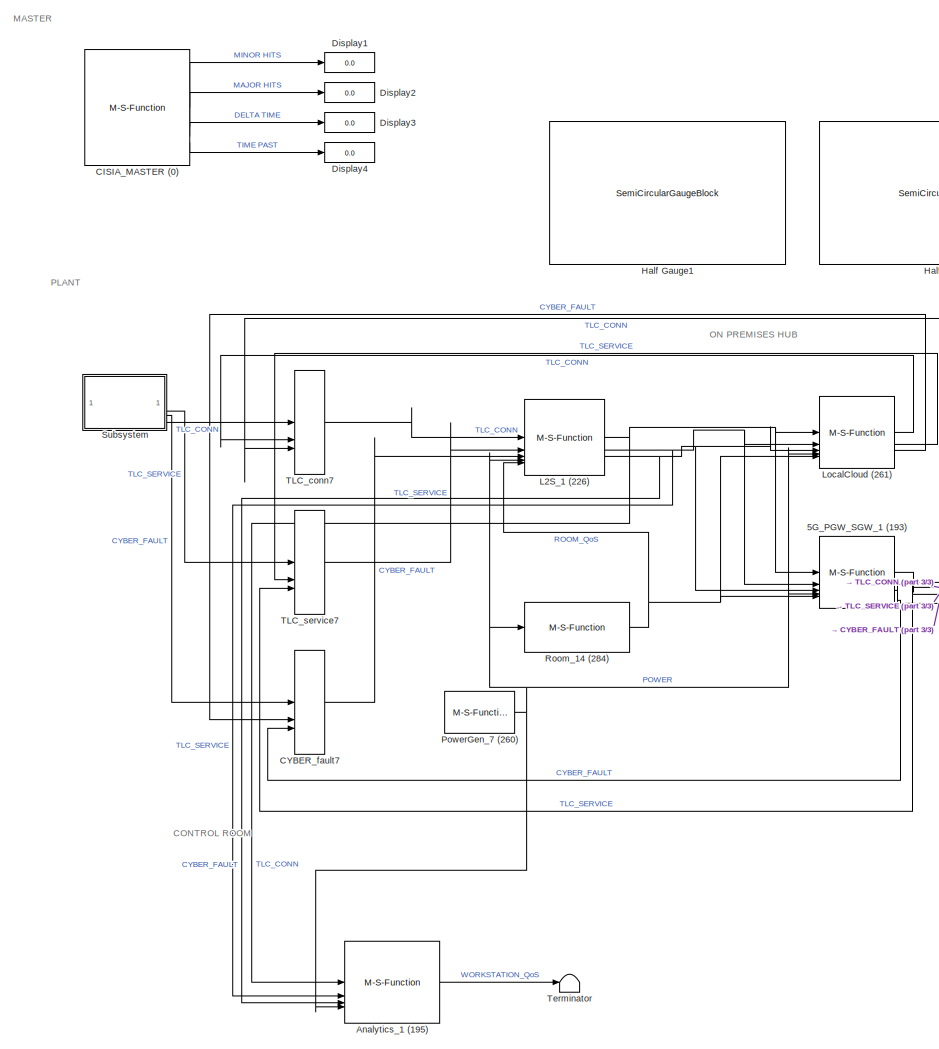
[diagram: root canvas - part 1/3, left side, full height]
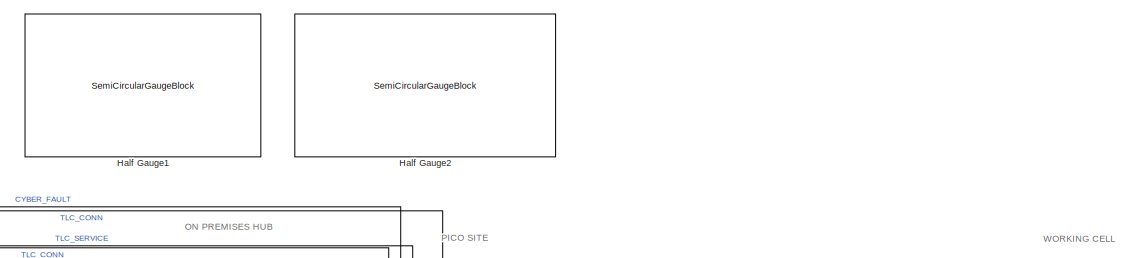
[diagram: root canvas - part 2/3, top center region]
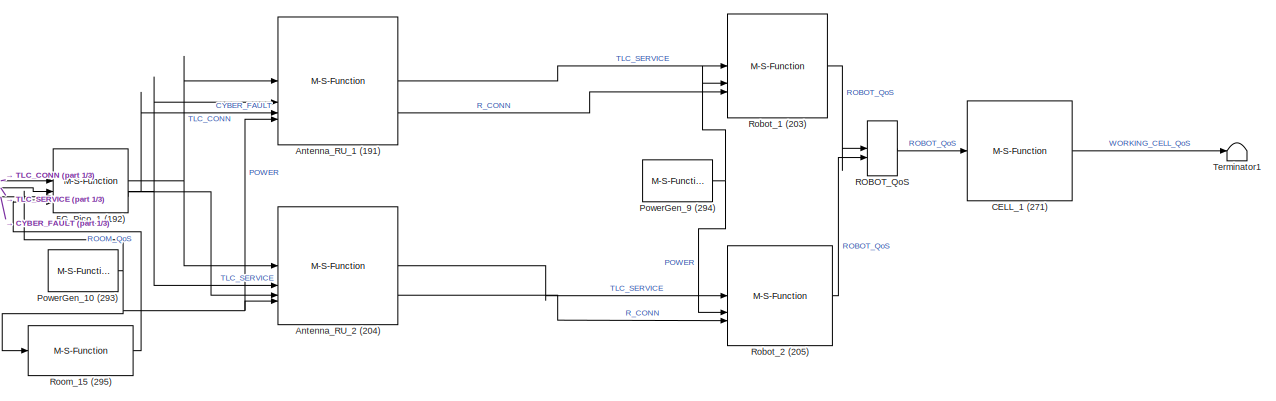
[diagram: root canvas - part 3/3, middle right region]
MODEL slx_37d6ca0d8c1a
KIND model
CONFIG AbsTol = auto
CONFIG EnableMultiTasking = off
CONFIG FixedStep = auto
CONFIG MaxStep = auto
CONFIG MinStep = auto
CONFIG RelTol = 1e-3
CONFIG SampleTimeConstraint = Unconstrained
CONFIG SolverName = VariableStepAuto
CONFIG StartTime = 0.0
CONFIG StopTime = 10.0
BLOCK [M-S-Function] 5G_PGW_SGW_1 (193)
  FunctionName = cisia_msfun
  Parameters = Parameter1, Parameter2, Parameter3, resources, Parameter10, codeupdate, step_received, step_computed, dynamic_computed, step_sended, id_entity, id_project, id_type, name_type, color
BLOCK [M-S-Function] 5G_Pico_1 (192)
  FunctionName = cisia_msfun
  Parameters = Parameter1, Parameter2, Parameter3, resources, Parameter10, codeupdate, step_received, step_computed, dynamic_computed, step_sended, id_entity, id_project, id_type, name_type, color
BLOCK [M-S-Function] Analytics_1 (195)
  FunctionName = cisia_msfun
  Parameters = Parameter1, Parameter2, Parameter3, resources, Parameter10, codeupdate, step_received, step_computed, dynamic_computed, step_sended, id_entity, id_project, id_type, name_type, color
BLOCK [M-S-Function] Antenna_RU_1 (191)
  FunctionName = cisia_msfun
  Parameters = Parameter1, Parameter2, Parameter3, resources, Parameter10, codeupdate, step_received, step_computed, dynamic_computed, step_sended, id_entity, id_project, id_type, name_type, color
BLOCK [M-S-Function] Antenna_RU_2 (204)
  FunctionName = cisia_msfun
  Parameters = Parameter1, Parameter2, Parameter3, resources, Parameter10, codeupdate, step_received, step_computed, dynamic_computed, step_sended, id_entity, id_project, id_type, name_type, color
BLOCK [M-S-Function] CELL_1 (271)
  FunctionName = cisia_msfun
  Parameters = Parameter1, Parameter2, Parameter3, resources, Parameter10, codeupdate, step_received, step_computed, dynamic_computed, step_sended, id_entity, id_project, id_type, name_type, color
BLOCK [M-S-Function] CISIA_MASTER (0)
  FunctionName = cisia_msfun
  Parameters = Parameter1, Parameter2, Parameter3, resources, Parameter4, Parameter5, Parameter6, Parameter7, Parameter8, Parameter9,Parameter11,Parameter12
BLOCK [MinMax] CYBER_fault7
  Function = max
  Inputs = 3
BLOCK [Display] Display1
  Decimation = 1
BLOCK [Display] Display2
  Decimation = 1
BLOCK [Display] Display3
  Decimation = 1
BLOCK [Display] Display4
  Decimation = 1
BLOCK [SemiCircularGaugeBlock] Half Gauge1
  ScaleMax = 1
BLOCK [SemiCircularGaugeBlock] Half Gauge2
  ScaleMax = 1
BLOCK [M-S-Function] L2S_1 (226)
  FunctionName = cisia_msfun
  Parameters = Parameter1, Parameter2, Parameter3, resources, Parameter10, codeupdate, step_received, step_computed, dynamic_computed, step_sended, id_entity, id_project, id_type, name_type, color
BLOCK [M-S-Function] LocalCloud (261)
  FunctionName = cisia_msfun
  Parameters = Parameter1, Parameter2, Parameter3, resources, Parameter10, codeupdate, step_received, step_computed, dynamic_computed, step_sended, id_entity, id_project, id_type, name_type, color
BLOCK [M-S-Function] PowerGen_10 (293)
  FunctionName = cisia_msfun
  Parameters = Parameter1, Parameter2, Parameter3, resources, Parameter10, codeupdate, step_received, step_computed, dynamic_computed, step_sended, id_entity, id_project, id_type, name_type, color
BLOCK [M-S-Function] PowerGen_7 (260)
  FunctionName = cisia_msfun
  Parameters = Parameter1, Parameter2, Parameter3, resources, Parameter10, codeupdate, step_received, step_computed, dynamic_computed, step_sended, id_entity, id_project, id_type, name_type, color
BLOCK [M-S-Function] PowerGen_9 (294)
  FunctionName = cisia_msfun
  Parameters = Parameter1, Parameter2, Parameter3, resources, Parameter10, codeupdate, step_received, step_computed, dynamic_computed, step_sended, id_entity, id_project, id_type, name_type, color
BLOCK [MinMax] ROBOT_QoS
  Inputs = 2
BLOCK [M-S-Function] Robot_1 (203)
  FunctionName = cisia_msfun
  Parameters = Parameter1, Parameter2, Parameter3, resources, Parameter10, codeupdate, step_received, step_computed, dynamic_computed, step_sended, id_entity, id_project, id_type, name_type, color
BLOCK [M-S-Function] Robot_2 (205)
  FunctionName = cisia_msfun
  Parameters = Parameter1, Parameter2, Parameter3, resources, Parameter10, codeupdate, step_received, step_computed, dynamic_computed, step_sended, id_entity, id_project, id_type, name_type, color
BLOCK [M-S-Function] Room_14 (284)
  FunctionName = cisia_msfun
  Parameters = Parameter1, Parameter2, Parameter3, resources, Parameter10, codeupdate, step_received, step_computed, dynamic_computed, step_sended, id_entity, id_project, id_type, name_type, color
BLOCK [M-S-Function] Room_15 (295)
  FunctionName = cisia_msfun
  Parameters = Parameter1, Parameter2, Parameter3, resources, Parameter10, codeupdate, step_received, step_computed, dynamic_computed, step_sended, id_entity, id_project, id_type, name_type, color
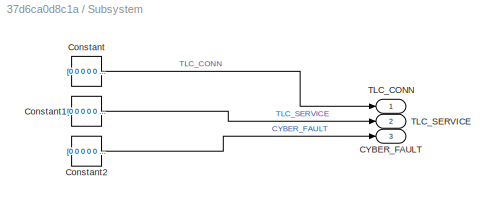
BLOCK [SubSystem] Subsystem
BLOCK [Outport] Subsystem/CYBER_FAULT
  Port = 3
BLOCK [Constant] Subsystem/Constant
  Value = [0 0 0 0 0 0 0 0 0 0 0 0 0 0 0 0 0 0 0 0]
BLOCK [Constant] Subsystem/Constant1
  Value = [0 0 0 0 0 0 0 0 0 0 0 0 0 0 0 0 0 0 0 0]
BLOCK [Constant] Subsystem/Constant2
  Value = [0 0 0 0 0 0 0 0 0 0]
BLOCK [Outport] Subsystem/TLC_CONN
BLOCK [Outport] Subsystem/TLC_SERVICE
  Port = 2
BLOCK [MinMax] TLC_conn7
  Function = max
  Inputs = 3
BLOCK [MinMax] TLC_service7
  Function = max
  Inputs = 3
BLOCK [Terminator] Terminator
BLOCK [Terminator] Terminator1
ANNOTATION (root): CONTROL ROOM
ANNOTATION (root): MASTER
ANNOTATION (root): ON PREMISES HUB
ANNOTATION (root): PICO SITE
ANNOTATION (root): PLANT
ANNOTATION (root): WORKING CELL
NET 5G_PGW_SGW_1 (193):1 -> 5G_Pico_1 (192):1, TLC_conn7:3
NET 5G_PGW_SGW_1 (193):2 -> 5G_Pico_1 (192):2, TLC_service7:3
NET 5G_PGW_SGW_1 (193):3 -> 5G_Pico_1 (192):3, CYBER_fault7:3
NET 5G_Pico_1 (192):1 -> Antenna_RU_1 (191):1, Antenna_RU_2 (204):1
NET 5G_Pico_1 (192):2 -> Antenna_RU_1 (191):2, Antenna_RU_2 (204):2
NET 5G_Pico_1 (192):3 -> Antenna_RU_1 (191):3, Antenna_RU_2 (204):3
LINE Analytics_1 (195):1 -> Terminator:1
LINE Antenna_RU_1 (191):1 -> Robot_1 (203):1
LINE Antenna_RU_1 (191):3 -> Robot_1 (203):3
LINE Antenna_RU_2 (204):1 -> Robot_2 (205):1
LINE Antenna_RU_2 (204):3 -> Robot_2 (205):3
LINE CELL_1 (271):1 -> Terminator1:1
LINE CISIA_MASTER (0):1 -> Display1:1
LINE CISIA_MASTER (0):2 -> Display2:1
LINE CISIA_MASTER (0):3 -> Display3:1
LINE CISIA_MASTER (0):4 -> Display4:1
LINE CYBER_fault7:1 -> L2S_1 (226):3
NET L2S_1 (226):1 -> 5G_PGW_SGW_1 (193):1, Analytics_1 (195):1, LocalCloud (261):1
NET L2S_1 (226):2 -> 5G_PGW_SGW_1 (193):2, Analytics_1 (195):2, LocalCloud (261):2
NET L2S_1 (226):3 -> 5G_PGW_SGW_1 (193):3, Analytics_1 (195):3, LocalCloud (261):3
LINE LocalCloud (261):1 -> TLC_conn7:2
LINE LocalCloud (261):2 -> TLC_service7:2
LINE LocalCloud (261):3 -> CYBER_fault7:2
NET PowerGen_10 (293):1 -> 5G_Pico_1 (192):4, Antenna_RU_1 (191):4, Antenna_RU_2 (204):4, Room_15 (295):1
NET PowerGen_7 (260):1 -> 5G_PGW_SGW_1 (193):4, Analytics_1 (195):4, L2S_1 (226):4, LocalCloud (261):4, Room_14 (284):1
NET PowerGen_9 (294):1 -> Robot_1 (203):2, Robot_2 (205):2
LINE ROBOT_QoS:1 -> CELL_1 (271):1
LINE Robot_1 (203):1 -> ROBOT_QoS:1
LINE Robot_2 (205):1 -> ROBOT_QoS:2
NET Room_14 (284):1 -> 5G_PGW_SGW_1 (193):5, L2S_1 (226):5, LocalCloud (261):5
LINE Room_15 (295):1 -> 5G_Pico_1 (192):5
LINE Subsystem/Constant1:1 -> Subsystem/TLC_SERVICE:1
LINE Subsystem/Constant2:1 -> Subsystem/CYBER_FAULT:1
LINE Subsystem/Constant:1 -> Subsystem/TLC_CONN:1
LINE Subsystem:1 -> TLC_conn7:1
LINE Subsystem:2 -> TLC_service7:1
LINE Subsystem:3 -> CYBER_fault7:1
LINE TLC_conn7:1 -> L2S_1 (226):1
LINE TLC_service7:1 -> L2S_1 (226):2
note: NET lines group one-source signal fan-out (src -> all destinations, sorted); 1:1 wires keep LINE
